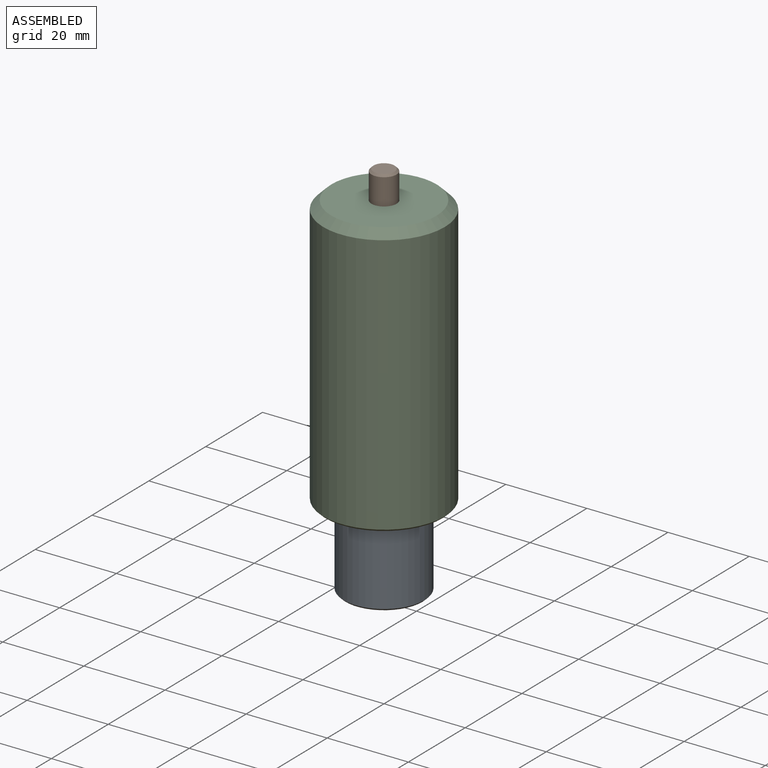
[diagram: assembled view]
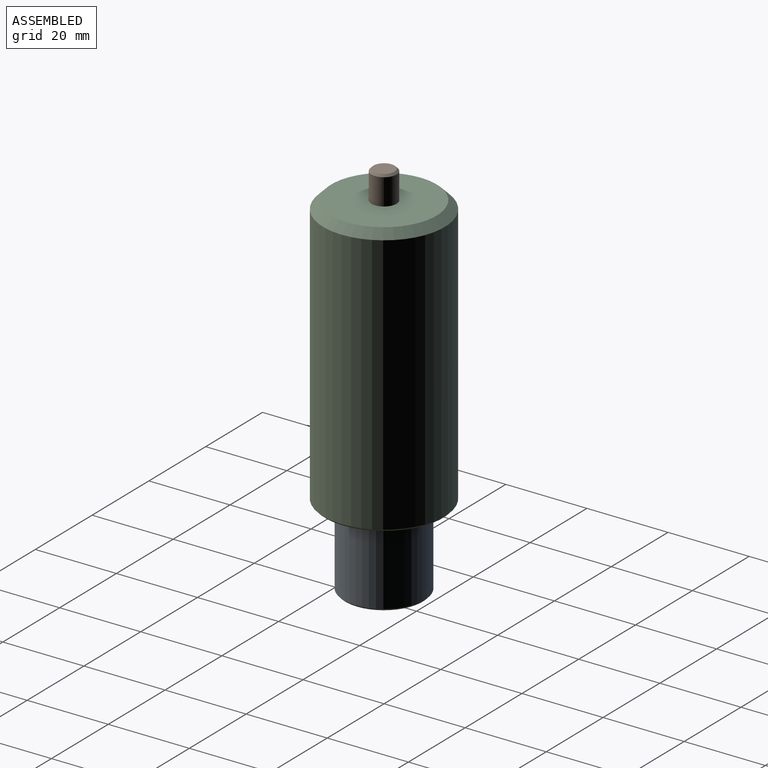
[diagram: assembled view, second angle]
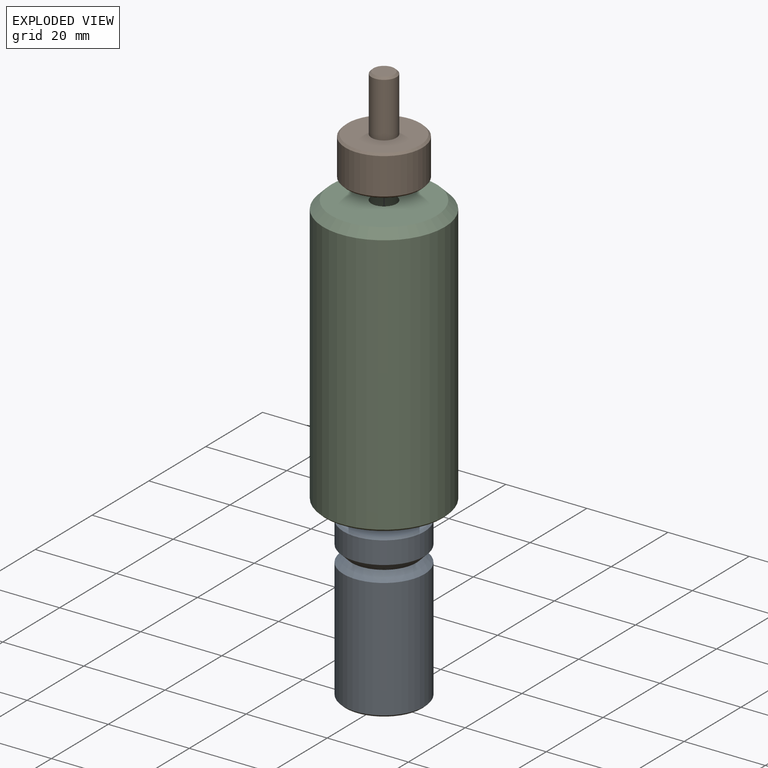
[diagram: exploded view]
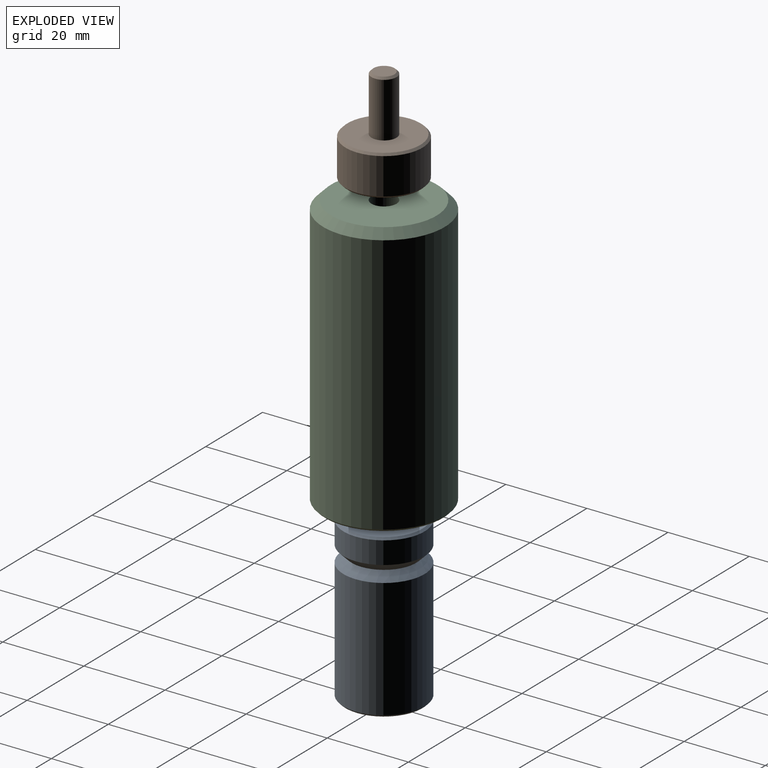
[diagram: exploded view, second angle]
ASSEMBLY  parts=3 mates=2
PART A: 8 faces, bbox 20x20x40 mm
  f0: plane 19x19mm, normal (0,0,-1), area 283.5mm2, adj f6
  f1: cylinder r=10mm len=29.5mm, axis (0,0,1), area 1853.5mm2, adj f2,f6
  f2: cone r=8mm half-angle=45deg, axis (0,0,-1), area 159.9mm2, adj f1,f3
  f3: cone r=10mm half-angle=45deg, axis (0,0,1), area 159.9mm2, adj f2,f4
  f4: cylinder r=10mm len=20mm, axis (0,0,1), area 345.6mm2, adj f3,f7
  f5: plane 19x19mm, normal (0,0,1), area 283.5mm2, adj f7
  f6: cone r=10mm half-angle=45deg, axis (0,0,1), area 43.3mm2, adj f0,f1
  f7: cone r=9.5mm half-angle=45deg, axis (0,0,-1), area 43.3mm2, adj f4,f5
PART B: 8 faces, bbox 19x19x24 mm
  f0: plane 18x18mm, normal (0,0,-1), area 254.5mm2, adj f5
  f1: cylinder r=9.5mm len=19mm, axis (0,0,1), area 537.2mm2, adj f5,f6
  f2: plane 18x18mm, normal (0,0,1), area 224.7mm2, adj f3,f6
  f3: cylinder r=3.08mm len=13.5mm, axis (0,0,1), area 261.3mm2, adj f2,f7
  f4: plane 5.16x5.16mm, normal (0,0,1), area 20.9mm2, adj f7
  f5: cone r=9.5mm half-angle=45deg, axis (0,0,1), area 41.1mm2, adj f0,f1
  f6: cone r=9mm half-angle=45deg, axis (0,0,-1), area 41.1mm2, adj f1,f2
  f7: cone r=2.58mm half-angle=45deg, axis (0,0,-1), area 12.6mm2, adj f3,f4
PART C: 12 faces, bbox 30x30x67 mm
  f0: cylinder r=10mm len=20mm, axis (0,0,1), area 1174mm2, adj f7,f10,f11
  f1: plane 29x29mm, normal (0,0,-1), area 314.2mm2, adj f9,f10
  f2: cylinder r=15mm len=64.5mm, axis (0,0,1), area 6028.3mm2, adj f8,f9,f11
  f3: plane 26x26mm, normal (0,0,1), area 500.6mm2, adj f4,f8
  f4: cylinder r=3.1mm len=7mm, axis (0,0,1), area 136.6mm2, adj f3,f5
  f5: plane 19x19mm, normal (0,0,-1), area 253.2mm2, adj f4,f6
  f6: cylinder r=9.5mm len=40mm, axis (0,0,1), area 2387.6mm2, adj f5,f7
  f7: plane 20x20mm, normal (0,0,-1), area 30.6mm2, adj f0,f6
  f8: cone r=13mm half-angle=45deg, axis (0,0,-1), area 248.8mm2, adj f2,f3
  f9: cone r=15mm half-angle=45deg, axis (0,0,1), area 65.5mm2, adj f1,f2
  f10: cone r=10.5mm half-angle=45deg, axis (0,0,-1), area 45.5mm2, adj f0,f1
  f11: cylinder r=4mm len=8mm, axis (1,0,0), area 129.3mm2, adj f0,f2
PLACE A t=(0,0,-20)mm
PLACE B t=(0,0,50)mm
PLACE C at identity
MATE cylindrical A.f1 <-> C.f0  axis (0,0,1) through (0,0,20)mm
MATE cylindrical B.f1 <-> C.f0  axis (0,0,1) through (0,0,74)mm
